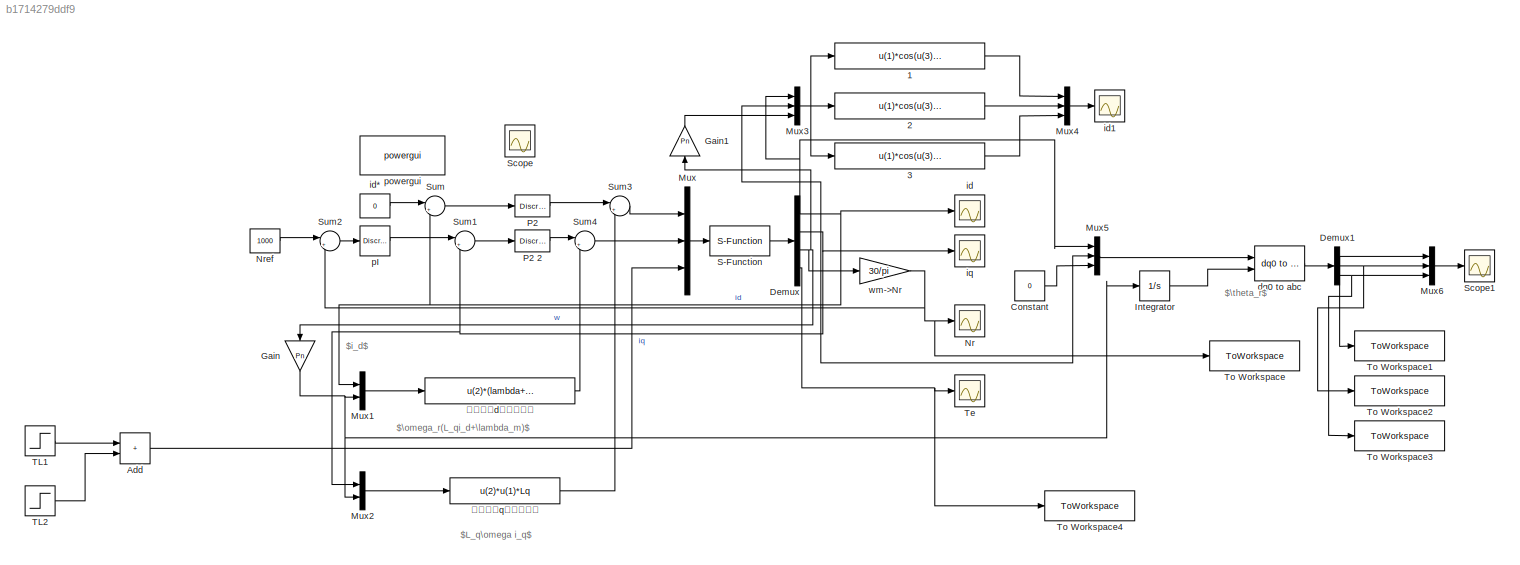
MODEL slx_b1714279ddf9
KIND model
CONFIG AbsTol = auto
CONFIG EnableMultiTasking = on
CONFIG FixedStep = auto
CONFIG InitFcn = Ts=50e-6;\nLd = 8.5e-3;\nR = 2.875;
CONFIG MaxStep = auto
CONFIG MinStep = auto
CONFIG RelTol = 1e-3
CONFIG SampleTimeConstraint = Unconstrained
CONFIG SolverName = ode23t
CONFIG StartTime = 0.0
CONFIG StopTime = 0.4
BLOCK [Fcn] 1
  Expr = u(1)*cos(u(3))-u(2)*sin(u(3))
BLOCK [Fcn] 2
  Expr = u(1)*cos(u(3)-2/3*pi)-u(2)*sin(u(3)-2/3*pi)
BLOCK [Fcn] 3
  Expr = u(1)*cos(u(3)+2/3*pi)-u(2)*sin(u(3)+2/3*pi)
BLOCK [Sum] Add
  IconShape = rectangular
  Ports = [2, 1]
BLOCK [Constant] Constant
  Value = 0
BLOCK [Demux] Demux
  Ports = [1, 4]
BLOCK [Demux] Demux1
  Outputs = 3
  Ports = [1, 3]
BLOCK [Gain] Gain
  Gain = Pn
  NameLocation = left
BLOCK [Gain] Gain1
  Gain = Pn
  NameLocation = right
BLOCK [Integrator] Integrator
  Ports = [1, 1]
BLOCK [Mux] Mux
  DisplayOption = bar
  Inputs = 3
  Ports = [3, 1]
BLOCK [Mux] Mux1
  DisplayOption = bar
  Inputs = 2
  Ports = [2, 1]
BLOCK [Mux] Mux2
  DisplayOption = bar
  Inputs = 2
  Ports = [2, 1]
BLOCK [Mux] Mux3
  DisplayOption = bar
  Inputs = 3
  Ports = [3, 1]
BLOCK [Mux] Mux4
  DisplayOption = bar
  Inputs = 3
  Ports = [3, 1]
BLOCK [Mux] Mux5
  DisplayOption = bar
  Inputs = 3
  Ports = [3, 1]
BLOCK [Mux] Mux6
  DisplayOption = bar
  Inputs = 3
  Ports = [3, 1]
BLOCK [Scope] Nr
  Floating = off
  NumInputPorts = 1
  Ports = [1]
  ScopeSpecificationString = Simulink.scopes.TimeScopeBlockCfg('CurrentConfiguration', extmgr.ConfigurationSet(extmgr.Configuration('Core','General UI',true),extmgr.Configuration('Core','Source UI',true),extmgr.Configuration('Sources','WiredSimulink',true,'DataLogging',true,'DataLoggingVariableName','Nr','DataLoggingSaveFormat','StructureWithTime','DataLoggingDecimation','1','DataLoggingDecimateData',true),extmgr.Configuratio...<+1746ch>
BLOCK [Constant] Nref
  NameLocation = top
  Value = 1000
BLOCK [Reference] P2   REF=powerlib_extras/Discrete 
Control Blocks/Discrete
PI Controller
  NameLocation = top
  Ports = [1, 1]
  SourceBlock = powerlib_extras/Discrete \nControl Blocks/Discrete\nPI Controller
  SourceProductBaseCode = PS
  SourceType = Discrete PI Controller
BLOCK [Reference] P2 2  REF=powerlib_extras/Discrete 
Control Blocks/Discrete
PI Controller
  NameLocation = top
  Ports = [1, 1]
  SourceBlock = powerlib_extras/Discrete \nControl Blocks/Discrete\nPI Controller
  SourceProductBaseCode = PS
  SourceType = Discrete PI Controller
BLOCK [S-Function] S-Function
  EnableBusSupport = off
  FunctionName = pmsm_paper
  Ports = [1, 1]
  SFcnIsStateOwnerBlock = off
  SFunctionDeploymentMode = off
BLOCK [Scope] Scope
  Floating = off
  IOType = viewer
  NumInputPorts = 1
  Ports = []
  ScopeSpecificationString = Simulink.scopes.TimeScopeBlockCfg('CurrentConfiguration', extmgr.ConfigurationSet(extmgr.Configuration('Core','General UI',true),extmgr.Configuration('Core','Source UI',true),extmgr.Configuration('Sources','WiredSimulink',true,'DataLoggingVariableName','ScopeData1','DataLoggingSaveFormat','StructureWithTime','DataLoggingLimitDataPoints',true,'DataLoggingDecimation','1','DataLoggingDecimateData',tr...<+1780ch>
BLOCK [Scope] Scope1
  Floating = off
  NumInputPorts = 1
  Ports = [1]
  ScopeSpecificationString = Simulink.scopes.TimeScopeBlockCfg('CurrentConfiguration', extmgr.ConfigurationSet(extmgr.Configuration('Core','General UI',true),extmgr.Configuration('Core','Source UI',true),extmgr.Configuration('Sources','WiredSimulink',true,'DataLoggingVariableName','ScopeData1'),extmgr.Configuration('Visuals','Time Domain',true,'SerializedDisplays',{struct('MinYLimReal','-4.7256','MaxYLimReal','6.72998','YLabe...<+1444ch>
BLOCK [Sum] Sum
  Inputs = |+-
  Ports = [2, 1]
BLOCK [Sum] Sum1
  Inputs = |+-
  Ports = [2, 1]
BLOCK [Sum] Sum2
  Inputs = |+-
  Ports = [2, 1]
BLOCK [Sum] Sum3
  Inputs = |+-
  Ports = [2, 1]
BLOCK [Sum] Sum4
  Inputs = |++
  Ports = [2, 1]
BLOCK [Step] TL1
  After = 1.27
  SampleTime = 0
  Time = 0.2
BLOCK [Step] TL2
  After = -0.62
  SampleTime = 0
  Time = 0.3
BLOCK [Scope] Te
  Floating = off
  NumInputPorts = 1
  Ports = [1]
  ScopeSpecificationString = Simulink.scopes.TimeScopeBlockCfg('CurrentConfiguration', extmgr.ConfigurationSet(extmgr.Configuration('Core','General UI',true),extmgr.Configuration('Core','Source UI',true),extmgr.Configuration('Sources','WiredSimulink',true,'DataLogging',true,'DataLoggingVariableName','ScopeData1','DataLoggingSaveFormat','StructureWithTime','DataLoggingDecimation','1','DataLoggingDecimateData',true),extmgr.Conf...<+1694ch>
BLOCK [ToWorkspace] To Workspace
  FixptAsFi = on
  MaxDataPoints = inf
  Ports = [1]
  SampleTime = -1
  SaveFormat = Timeseries
  VariableName = wm
BLOCK [ToWorkspace] To Workspace1
  FixptAsFi = on
  MaxDataPoints = inf
  Ports = [1]
  SampleTime = -1
  SaveFormat = Timeseries
  VariableName = ia
BLOCK [ToWorkspace] To Workspace2
  FixptAsFi = on
  MaxDataPoints = inf
  Ports = [1]
  SampleTime = -1
  SaveFormat = Timeseries
  VariableName = ib
BLOCK [ToWorkspace] To Workspace3
  FixptAsFi = on
  MaxDataPoints = inf
  Ports = [1]
  SampleTime = -1
  SaveFormat = Timeseries
  VariableName = ic
BLOCK [ToWorkspace] To Workspace4
  FixptAsFi = on
  MaxDataPoints = inf
  Ports = [1]
  SampleTime = -1
  SaveFormat = Timeseries
  VariableName = Te
BLOCK [Reference] dq0 to abc  REF=spsdq0toabcLib/dq0 to abc
  Ports = [2, 1]
  SourceBlock = spsdq0toabcLib/dq0 to abc
  SourceProductBaseCode = PS
  SourceType = dq0 to abc Transformation
BLOCK [Scope] id
  Floating = off
  NameLocation = top
  NumInputPorts = 1
  Ports = [1]
  ScopeSpecificationString = Simulink.scopes.TimeScopeBlockCfg('CurrentConfiguration', extmgr.ConfigurationSet(extmgr.Configuration('Core','General UI',true),extmgr.Configuration('Core','Source UI',true),extmgr.Configuration('Sources','WiredSimulink',true,'DataLogging',true,'DataLoggingVariableName','Id','DataLoggingSaveFormat','StructureWithTime','DataLoggingDecimation','1','DataLoggingDecimateData',true),extmgr.Configuratio...<+1674ch>
BLOCK [Constant] id*
  NameLocation = top
  Value = 0
BLOCK [Scope] id1
  Floating = off
  NameLocation = top
  NumInputPorts = 1
  Ports = [1]
  ScopeSpecificationString = Simulink.scopes.TimeScopeBlockCfg('CurrentConfiguration', extmgr.ConfigurationSet(extmgr.Configuration('Core','General UI',true),extmgr.Configuration('Core','Source UI',true),extmgr.Configuration('Sources','WiredSimulink',true,'DataLogging',true,'DataLoggingVariableName','Id1','DataLoggingSaveFormat','StructureWithTime','DataLoggingDecimation','1','DataLoggingDecimateData',true),extmgr.Configurati...<+1707ch>
BLOCK [Scope] iq
  Floating = off
  NumInputPorts = 1
  Ports = [1]
  ScopeSpecificationString = Simulink.scopes.TimeScopeBlockCfg('CurrentConfiguration', extmgr.ConfigurationSet(extmgr.Configuration('Core','General UI',true),extmgr.Configuration('Core','Source UI',true),extmgr.Configuration('Sources','WiredSimulink',true,'DataLogging',true,'DataLoggingVariableName','Iq','DataLoggingSaveFormat','StructureWithTime','DataLoggingDecimation','1','DataLoggingDecimateData',true),extmgr.Configuratio...<+1678ch>
BLOCK [Reference] pI   REF=powerlib_extras/Discrete 
Control Blocks/Discrete
PI Controller
  Ports = [1, 1]
  SourceBlock = powerlib_extras/Discrete \nControl Blocks/Discrete\nPI Controller
  SourceProductBaseCode = PS
  SourceType = Discrete PI Controller
BLOCK [Reference] powergui  REF=spspowerguiLib/powergui
  Ports = []
  SourceBlock = spspowerguiLib/powergui
  SourceProductBaseCode = PS
  SourceType = PSB option menu block
BLOCK [Gain] wm->Nr
  Gain = 30/pi
BLOCK [Fcn] 前馈解耦d轴补偿电压
  Expr = u(2)*(lambda+u(1)*Lq)
BLOCK [Fcn] 前馈解耦q轴补偿电压
  Expr = u(2)*u(1)*Lq
ANNOTATION (root): $\omega_r(L_qi_d+\lambda_m)$
ANNOTATION (root): $i_d$
ANNOTATION (root): $L_q\omega i_q$
ANNOTATION (root): $\theta_r$
LINE 1:1 -> Mux4:1
LINE 2:1 -> Mux4:2
LINE 3:1 -> Mux4:3
LINE Add:1 -> Mux:3
LINE Constant:1 -> Mux5:3
NET Demux1:1 -> Mux6:1, To Workspace1:1
NET Demux1:2 -> Mux6:2, To Workspace2:1
NET Demux1:3 -> Mux6:3, To Workspace3:1
NET Demux:1 -> Mux1:1, Mux3:1, Mux5:1, Sum:2, id:1
NET Demux:2 -> Mux2:1, Mux3:2, Mux5:2, Sum1:2, iq:1
NET Demux:3 -> Gain1:1, Gain:1, wm->Nr:1
NET Demux:4 -> Te:1, To Workspace4:1
LINE Gain1:1 -> Mux3:3
NET Gain:1 -> Integrator:1, Mux1:2, Mux2:2
LINE Integrator:1 -> dq0 to abc:2
LINE Mux1:1 -> 前馈解耦d轴补偿电压:1
LINE Mux2:1 -> 前馈解耦q轴补偿电压:1
NET Mux3:1 -> 1:1, 2:1, 3:1
LINE Mux4:1 -> id1:1
LINE Mux5:1 -> dq0 to abc:1
LINE Mux6:1 -> Scope1:1
LINE Mux:1 -> S-Function:1
LINE Nref:1 -> Sum2:1
LINE P2 2:1 -> Sum4:1
LINE P2 :1 -> Sum3:1
LINE S-Function:1 -> Demux:1
LINE Sum1:1 -> P2 2:1
LINE Sum2:1 -> pI :1
LINE Sum3:1 -> Mux:1
LINE Sum4:1 -> Mux:2
LINE Sum:1 -> P2 :1
LINE TL1:1 -> Add:1
LINE TL2:1 -> Add:2
LINE dq0 to abc:1 -> Demux1:1
LINE id*:1 -> Sum:1
LINE pI :1 -> Sum1:1
NET wm->Nr:1 -> Nr:1, Sum2:2, To Workspace:1
LINE 前馈解耦d轴补偿电压:1 -> Sum4:2
LINE 前馈解耦q轴补偿电压:1 -> Sum3:2
note: NET lines group one-source signal fan-out (src -> all destinations, sorted); 1:1 wires keep LINE
